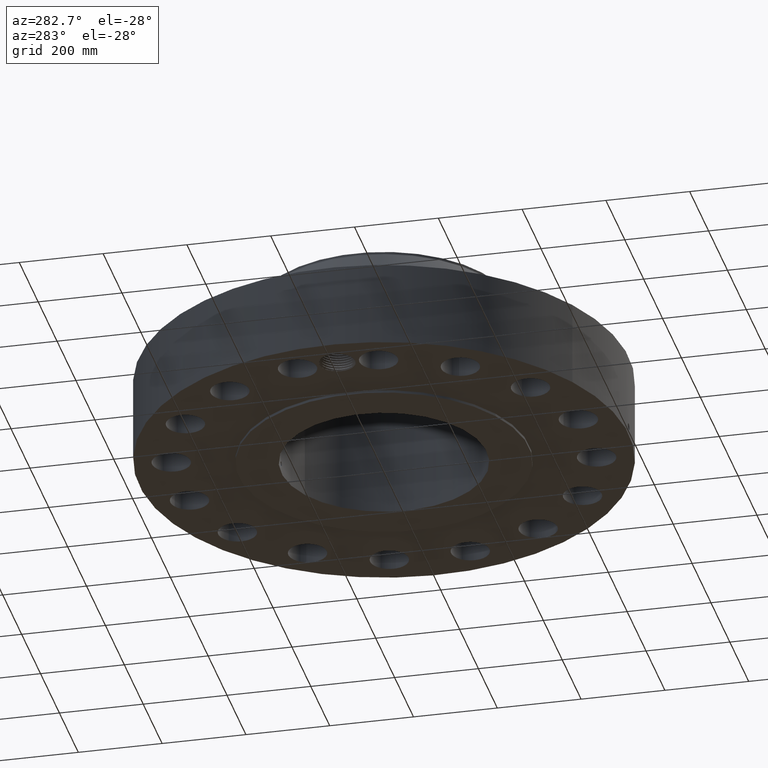
[diagram: clean part render]
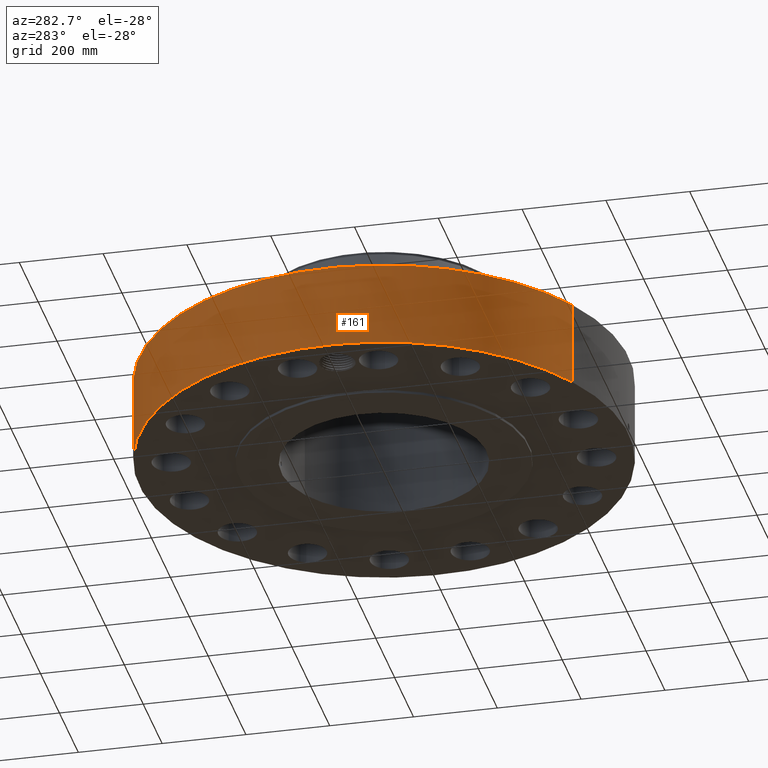
[diagram: same view with one face highlighted and labeled with its STEP entity id]
A machine part, auxiliary view. The second image highlights one B-rep face of the part: STEP entity #161.
In plain terms, the highlighted cylindrical surface (partial cylindrical patch) has radius 584.2 mm, axis along (0, 0, -1).
Its self-contained STEP definition (entity closure, byte-faithful):
#38=AXIS2_PLACEMENT_3D('Cylinder Axis2P3D',#35,#36,#37) ;
#42=AXIS2_PLACEMENT_3D('Circle Axis2P3D',#40,#41,$) ;
#58=AXIS2_PLACEMENT_3D('Circle Axis2P3D',#56,#57,$) ;
#35=CARTESIAN_POINT('Axis2P3D Location',(0.,0.,8.12500000003)) ;
#40=CARTESIAN_POINT('Axis2P3D Location',(0.,0.,0.250000000001)) ;
#44=CARTESIAN_POINT('Vertex',(-11.0267873879,-20.1843989236,0.250000000001)) ;
#46=CARTESIAN_POINT('Vertex',(11.0267873879,20.1843989236,0.250000000001)) ;
#49=CARTESIAN_POINT('Line Origine',(-11.0267873879,-20.1843989236,4.25000000002)) ;
#53=CARTESIAN_POINT('Vertex',(-11.0267873879,-20.1843989236,8.25000000003)) ;
#56=CARTESIAN_POINT('Axis2P3D Location',(0.,0.,8.25000000003)) ;
#60=CARTESIAN_POINT('Vertex',(11.0267873879,20.1843989236,8.25000000003)) ;
#63=CARTESIAN_POINT('Line Origine',(11.0267873879,20.1843989236,4.25000000002)) ;
#75=CARTESIAN_POINT('Control Point',(-0.000715754847052,22.999999989,1.29411846209)) ;
#76=CARTESIAN_POINT('Control Point',(-0.0185918965227,22.9999994327,1.29408238213)) ;
#77=CARTESIAN_POINT('Control Point',(-0.0364649831875,22.999977878,1.29268938891)) ;
#78=CARTESIAN_POINT('Control Point',(-0.0541307093301,22.9999363014,1.28995554322)) ;
#79=CARTESIAN_POINT('Vertex',(-0.000715520481899,22.999999989,1.29411851109)) ;
#81=CARTESIAN_POINT('Vertex',(-0.0541224153993,22.9999365698,1.28995684364)) ;
#85=CARTESIAN_POINT('Control Point',(-0.054122324017,22.9999363212,1.28995630979)) ;
#86=CARTESIAN_POINT('Control Point',(-0.0949991505607,22.9998401318,1.28571457418)) ;
#87=CARTESIAN_POINT('Control Point',(-0.135288710573,22.9996321501,1.27406169477)) ;
#88=CARTESIAN_POINT('Control Point',(-0.172463870292,22.9993533869,1.25572326453)) ;
#89=CARTESIAN_POINT('Vertex',(-0.172463870292,22.9993533869,1.25572326453)) ;
#93=CARTESIAN_POINT('Control Point',(-0.0313795555231,22.9999785941,0.53121677103)) ;
#94=CARTESIAN_POINT('Control Point',(-0.0968081461012,22.9998893279,0.53948085119)) ;
#95=CARTESIAN_POINT('Control Point',(-0.160203233076,22.9995701778,0.561265797857)) ;
#96=CARTESIAN_POINT('Control Point',(-0.217717225271,22.99905345,0.595956905209)) ;
#97=CARTESIAN_POINT('Control Point',(-0.293728118903,22.998169949,0.666813922032)) ;
#98=CARTESIAN_POINT('Control Point',(-0.342715588619,22.9974550595,0.75577219361)) ;
#99=CARTESIAN_POINT('Control Point',(-0.356613861653,22.9972386265,0.789941124633)) ;
#100=CARTESIAN_POINT('Control Point',(-0.377301798447,22.9969075912,0.864772748304)) ;
#101=CARTESIAN_POINT('Control Point',(-0.379190572292,22.9968730416,0.941974058712)) ;
#102=CARTESIAN_POINT('Control Point',(-0.374855812282,22.9969462606,0.982465555053)) ;
#103=CARTESIAN_POINT('Control Point',(-0.352232338436,22.9973182844,1.07562343047)) ;
#104=CARTESIAN_POINT('Control Point',(-0.302150233213,22.9980455976,1.15741402848)) ;
#105=CARTESIAN_POINT('Control Point',(-0.264857098822,22.9985334094,1.19868358052)) ;
#106=CARTESIAN_POINT('Control Point',(-0.220831593836,22.9989906948,1.23186356362)) ;
#107=CARTESIAN_POINT('Control Point',(-0.172463870292,22.9993533869,1.25572326453)) ;
#108=CARTESIAN_POINT('Vertex',(-0.0313795555232,22.9999785941,0.53121677103)) ;
#112=CARTESIAN_POINT('Control Point',(-0.0313795555232,22.9999785941,0.53121677103)) ;
#113=CARTESIAN_POINT('Control Point',(-0.0209153673712,22.9999928707,0.530878580119)) ;
#114=CARTESIAN_POINT('Control Point',(-0.0104422737798,23.0000000013,0.530931396883)) ;
#115=CARTESIAN_POINT('Control Point',(2.72878354305E-006,23.0000000001,0.531374667806)) ;
#116=CARTESIAN_POINT('Vertex',(2.72878354481E-006,23.0000000001,0.531374667806)) ;
#120=CARTESIAN_POINT('Control Point',(0.192329869974,22.9991958387,0.587954108467)) ;
#121=CARTESIAN_POINT('Control Point',(0.148892066654,22.9995590856,0.562359699398)) ;
#122=CARTESIAN_POINT('Control Point',(0.101096820683,22.9998499354,0.543891469099)) ;
#123=CARTESIAN_POINT('Control Point',(0.0507986276052,22.9999999941,0.53353037459)) ;
#124=CARTESIAN_POINT('Control Point',(2.72878354305E-006,23.0000000001,0.531374667806)) ;
#125=CARTESIAN_POINT('Vertex',(0.192329869974,22.9991958387,0.587954108467)) ;
#129=CARTESIAN_POINT('Control Point',(0.192329869974,22.9991958387,0.587954108467)) ;
#130=CARTESIAN_POINT('Control Point',(0.220777048442,22.9989579503,0.604715745813)) ;
#131=CARTESIAN_POINT('Control Point',(0.247477094373,22.998690687,0.624342720769)) ;
#132=CARTESIAN_POINT('Control Point',(0.272028876536,22.9984081801,0.646616399405)) ;
#133=CARTESIAN_POINT('Control Point',(0.342986866536,22.9975062612,0.725882631157)) ;
#134=CARTESIAN_POINT('Control Point',(0.384824128515,22.9967926468,0.82551680445)) ;
#135=CARTESIAN_POINT('Control Point',(0.396559522886,22.9965716886,0.899805142224)) ;
#136=CARTESIAN_POINT('Control Point',(0.386762456436,22.9967700486,1.01040509816)) ;
#137=CARTESIAN_POINT('Control Point',(0.340659986342,22.9974855913,1.10782873023)) ;
#138=CARTESIAN_POINT('Control Point',(0.321493393458,22.9977678673,1.13821394104)) ;
#139=CARTESIAN_POINT('Control Point',(0.260134296076,22.9985930967,1.21368378944)) ;
#140=CARTESIAN_POINT('Control Point',(0.177721545146,22.9994093592,1.26605963269)) ;
#141=CARTESIAN_POINT('Control Point',(0.119782741466,22.9998080846,1.2877816856)) ;
#142=CARTESIAN_POINT('Control Point',(0.0594192682977,23.0000000669,1.29706754953)) ;
#143=CARTESIAN_POINT('Control Point',(-2.58579355734E-005,23.0000000001,1.29415298429)) ;
#144=CARTESIAN_POINT('Vertex',(-2.58579355519E-005,23.0000000001,1.29415298429)) ;
#148=CARTESIAN_POINT('Control Point',(-0.000715520472566,22.999999989,1.29411851107)) ;
#149=CARTESIAN_POINT('Control Point',(-0.000370713952716,22.9999999997,1.29413607617)) ;
#150=CARTESIAN_POINT('Control Point',(-2.58579402653E-005,23.0000000001,1.29415298429)) ;
#36=DIRECTION('Axis2P3D Direction',(0.,0.,-0.0393700787402)) ;
#37=DIRECTION('Axis2P3D XDirection',(0.0188750212049,0.0345504945626,0.)) ;
#41=DIRECTION('Axis2P3D Direction',(0.,0.,-0.0393700787402)) ;
#50=DIRECTION('Vector Direction',(0.,0.,-0.0393700787402)) ;
#57=DIRECTION('Axis2P3D Direction',(0.,0.,-0.0393700787402)) ;
#64=DIRECTION('Vector Direction',(0.,0.,-0.0393700787402)) ;
#51=VECTOR('Line Direction',#50,0.0393700787402) ;
#65=VECTOR('Line Direction',#64,0.0393700787402) ;
#69=ORIENTED_EDGE('',*,*,#48,.F.) ;
#70=ORIENTED_EDGE('',*,*,#55,.T.) ;
#71=ORIENTED_EDGE('',*,*,#62,.T.) ;
#72=ORIENTED_EDGE('',*,*,#67,.F.) ;
#153=ORIENTED_EDGE('',*,*,#83,.T.) ;
#154=ORIENTED_EDGE('',*,*,#91,.T.) ;
#155=ORIENTED_EDGE('',*,*,#110,.F.) ;
#156=ORIENTED_EDGE('',*,*,#118,.T.) ;
#157=ORIENTED_EDGE('',*,*,#127,.F.) ;
#158=ORIENTED_EDGE('',*,*,#146,.T.) ;
#159=ORIENTED_EDGE('',*,*,#151,.F.) ;
#160=FACE_BOUND('',#152,.T.) ;
#161=ADVANCED_FACE('PartBody',(#73,#160),#39,.T.) ;
#74=B_SPLINE_CURVE_WITH_KNOTS('',3,(#75,#76,#77,#78),.UNSPECIFIED.,.F.,.U.,(4,4),(34.6170796191,36.6002669842),.UNSPECIFIED.) ;
#84=B_SPLINE_CURVE_WITH_KNOTS('',3,(#85,#86,#87,#88),.UNSPECIFIED.,.F.,.U.,(4,4),(0.,4.61778387296),.UNSPECIFIED.) ;
#92=B_SPLINE_CURVE_WITH_KNOTS('',5,(#93,#94,#95,#96,#97,#98,#99,#100,#101,#102,#103,#104,#105,#106,#107),.UNSPECIFIED.,.F.,.U.,(6,3,3,3,6),(0.,11.4609161788,18.0086274974,25.3224681871,35.3359511486),.UNSPECIFIED.) ;
#111=B_SPLINE_CURVE_WITH_KNOTS('',3,(#112,#113,#114,#115),.UNSPECIFIED.,.F.,.U.,(4,4),(0.,1.09162493804),.UNSPECIFIED.) ;
#119=B_SPLINE_CURVE_WITH_KNOTS('',4,(#120,#121,#122,#123,#124),.UNSPECIFIED.,.F.,.U.,(5,5),(0.,7.0783541003),.UNSPECIFIED.) ;
#128=B_SPLINE_CURVE_WITH_KNOTS('',5,(#129,#130,#131,#132,#133,#134,#135,#136,#137,#138,#139,#140,#141,#142,#143),.UNSPECIFIED.,.F.,.U.,(6,3,3,3,6),(0.,5.79446892383,18.6590968847,25.1014237671,36.2129522089),.UNSPECIFIED.) ;
#147=B_SPLINE_CURVE_WITH_KNOTS('',2,(#148,#149,#150),.UNSPECIFIED.,.F.,.U.,(3,3),(1.01142221015,1.03720651099),.UNSPECIFIED.) ;
#43=CIRCLE('generated circle',#42,23.0000000001) ;
#59=CIRCLE('generated circle',#58,23.0000000001) ;
#39=CYLINDRICAL_SURFACE('generated cylinder',#38,23.0000000001) ;
#48=EDGE_CURVE('',#45,#47,#43,.T.) ;
#55=EDGE_CURVE('',#45,#54,#52,.F.) ;
#62=EDGE_CURVE('',#54,#61,#59,.T.) ;
#67=EDGE_CURVE('',#47,#61,#66,.F.) ;
#83=EDGE_CURVE('',#80,#82,#74,.T.) ;
#91=EDGE_CURVE('',#82,#90,#84,.T.) ;
#110=EDGE_CURVE('',#109,#90,#92,.T.) ;
#118=EDGE_CURVE('',#109,#117,#111,.T.) ;
#127=EDGE_CURVE('',#126,#117,#119,.T.) ;
#146=EDGE_CURVE('',#126,#145,#128,.T.) ;
#151=EDGE_CURVE('',#80,#145,#147,.T.) ;
#68=EDGE_LOOP('',(#69,#70,#71,#72)) ;
#152=EDGE_LOOP('',(#153,#154,#155,#156,#157,#158,#159)) ;
#73=FACE_OUTER_BOUND('',#68,.T.) ;
#52=LINE('Line',#49,#51) ;
#66=LINE('Line',#63,#65) ;
#45=VERTEX_POINT('',#44) ;
#47=VERTEX_POINT('',#46) ;
#54=VERTEX_POINT('',#53) ;
#61=VERTEX_POINT('',#60) ;
#80=VERTEX_POINT('',#79) ;
#82=VERTEX_POINT('',#81) ;
#90=VERTEX_POINT('',#89) ;
#109=VERTEX_POINT('',#108) ;
#117=VERTEX_POINT('',#116) ;
#126=VERTEX_POINT('',#125) ;
#145=VERTEX_POINT('',#144) ;